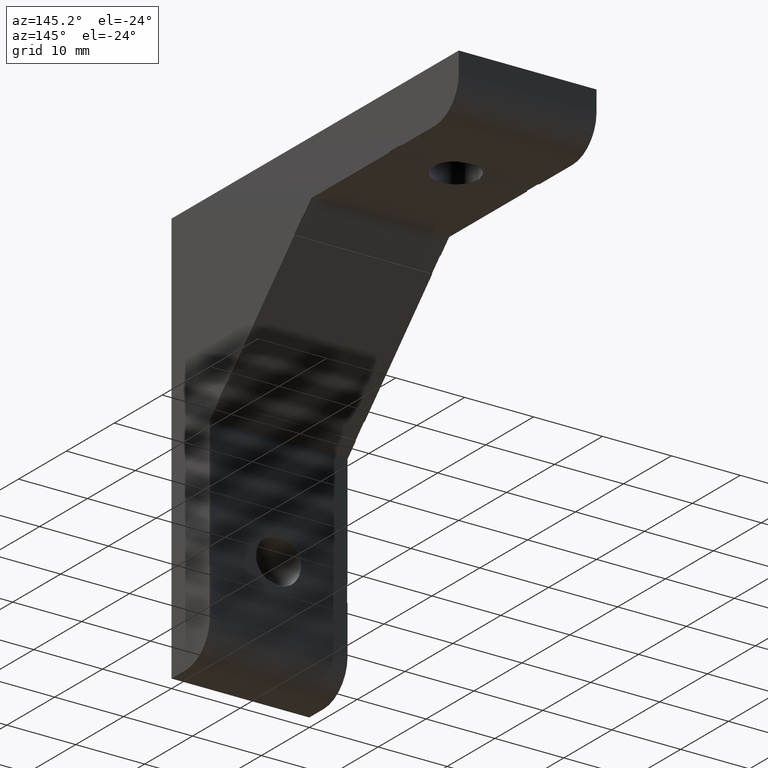
[diagram: clean part render]
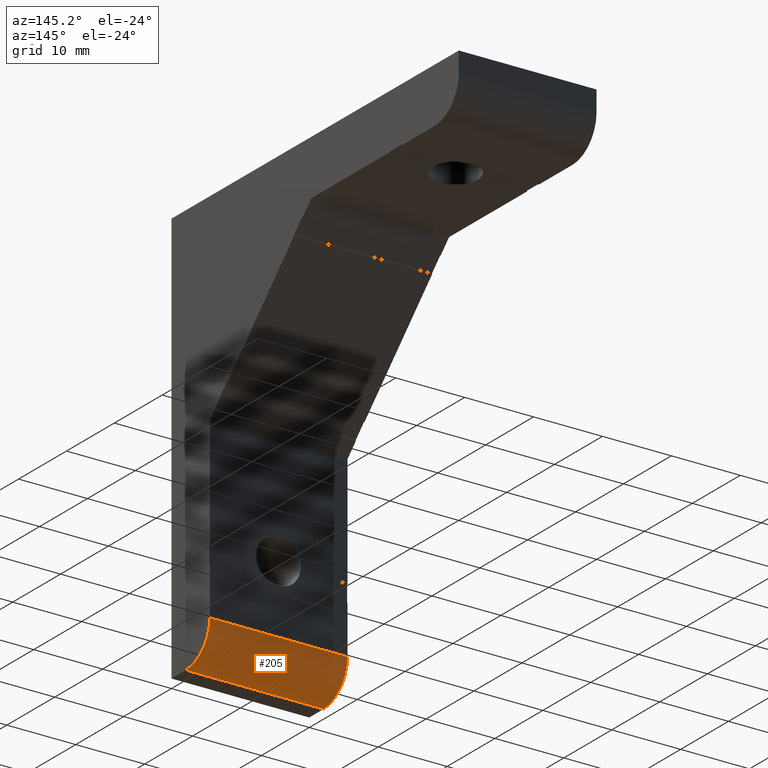
[diagram: same view with one face highlighted and labeled with its STEP entity id]
A machine part, auxiliary view. The second image highlights one B-rep face of the part: STEP entity #205.
In plain terms, the highlighted cylindrical surface (partial cylindrical patch) has radius 5 mm, axis along (-1, -0, -0).
Its self-contained STEP definition (entity closure, byte-faithful):
#205 = ADVANCED_FACE ( 'NONE', ( #1283 ), #1284, .T. ) ;
#284 = CARTESIAN_POINT ( 'NONE',  ( 10.00000000000000000, 8.000000000000000000, -55.00000000102551200 ) ) ;
#285 = DIRECTION ( 'NONE',  ( -1.000000000000000000, 0.0000000000000000000, 0.0000000000000000000 ) ) ;
#288 = CARTESIAN_POINT ( 'NONE',  ( 10.00000000000000000, 3.000000000000000000, -60.00000000000000000 ) ) ;
#289 = DIRECTION ( 'NONE',  ( -1.000000000000000000, -0.0000000000000000000, -0.0000000000000000000 ) ) ;
#290 = CARTESIAN_POINT ( 'NONE',  ( 3.469446951953614200E-015, 2.999999999999993300, -55.00000000000000000 ) ) ;
#291 = DIRECTION ( 'NONE',  ( -1.000000000000000000, -3.469446951953616700E-016, -0.0000000000000000000 ) ) ;
#292 = DIRECTION ( 'NONE',  ( 3.469446951953616200E-016, -1.000000000000000000, 0.0000000000000000000 ) ) ;
#293 = CARTESIAN_POINT ( 'NONE',  ( 20.00000000000000000, 3.000000000000000000, -55.00000000000000000 ) ) ;
#294 = DIRECTION ( 'NONE',  ( -1.000000000000000000, -3.469446951953616700E-016, -0.0000000000000000000 ) ) ;
#295 = DIRECTION ( 'NONE',  ( 6.938893903907232300E-016, -1.000000000000000000, 0.0000000000000000000 ) ) ;
#448 = CARTESIAN_POINT ( 'NONE',  ( 20.00000000000000000, 3.000000000000000000, -60.00000000000000000 ) ) ;
#452 = CARTESIAN_POINT ( 'NONE',  ( 19.99999999999999600, 7.999999990000000900, -55.00000000051275600 ) ) ;
#467 = CARTESIAN_POINT ( 'NONE',  ( 1.734723479446252100E-015, 7.999999990000000900, -55.00000000051275600 ) ) ;
#488 = CARTESIAN_POINT ( 'NONE',  ( 1.734723475976807100E-015, 2.999999999999996400, -60.00000000000000000 ) ) ;
#557 = EDGE_LOOP ( 'NONE', ( #1235, #1236, #1237, #1238 ) ) ;
#734 = AXIS2_PLACEMENT_3D ( 'NONE', #909, #916, #919 ) ;
#753 = AXIS2_PLACEMENT_3D ( 'NONE', #290, #291, #292 ) ;
#754 = AXIS2_PLACEMENT_3D ( 'NONE', #293, #294, #295 ) ;
#796 = EDGE_CURVE ( 'NONE', #955, #970, #1089, .T. ) ;
#798 = EDGE_CURVE ( 'NONE', #951, #991, #1022, .T. ) ;
#799 = EDGE_CURVE ( 'NONE', #970, #991, #1017, .T. ) ;
#800 = EDGE_CURVE ( 'NONE', #955, #951, #1152, .T. ) ;
#909 = CARTESIAN_POINT ( 'NONE',  ( 20.00000000000000000, 3.000000000000000000, -55.00000000000000000 ) ) ;
#916 = DIRECTION ( 'NONE',  ( -1.000000000000000000, -3.469446951953616700E-016, -0.0000000000000000000 ) ) ;
#919 = DIRECTION ( 'NONE',  ( 6.938893903907232300E-016, -1.000000000000000000, 0.0000000000000000000 ) ) ;
#951 = VERTEX_POINT ( 'NONE', #448 ) ;
#955 = VERTEX_POINT ( 'NONE', #452 ) ;
#970 = VERTEX_POINT ( 'NONE', #467 ) ;
#991 = VERTEX_POINT ( 'NONE', #488 ) ;
#1017 = CIRCLE ( 'NONE', #753, 4.999999999999997300 ) ;
#1022 = LINE ( 'NONE', #288, #1045 ) ;
#1045 = VECTOR ( 'NONE', #289, 1000.000000000000000 ) ;
#1089 = LINE ( 'NONE', #284, #1117 ) ;
#1117 = VECTOR ( 'NONE', #285, 1000.000000000000000 ) ;
#1152 = CIRCLE ( 'NONE', #754, 4.999999999999997300 ) ;
#1235 = ORIENTED_EDGE ( 'NONE', *, *, #798, .T. ) ;
#1236 = ORIENTED_EDGE ( 'NONE', *, *, #799, .F. ) ;
#1237 = ORIENTED_EDGE ( 'NONE', *, *, #796, .F. ) ;
#1238 = ORIENTED_EDGE ( 'NONE', *, *, #800, .T. ) ;
#1283 = FACE_OUTER_BOUND ( 'NONE', #557, .T. ) ;
#1284 = CYLINDRICAL_SURFACE ( 'NONE', #734, 4.999999999999997300 ) ;